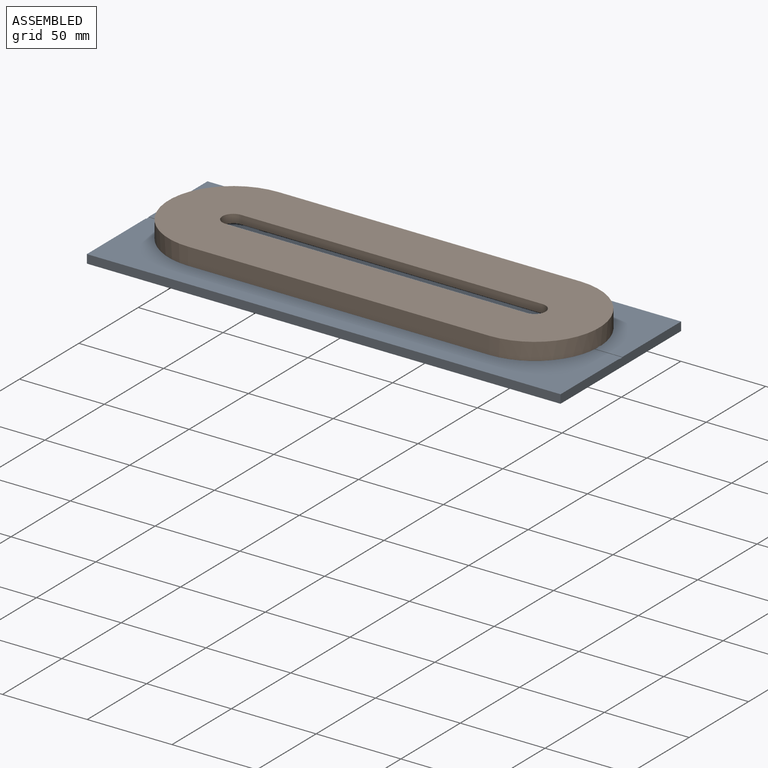
[diagram: assembled view]
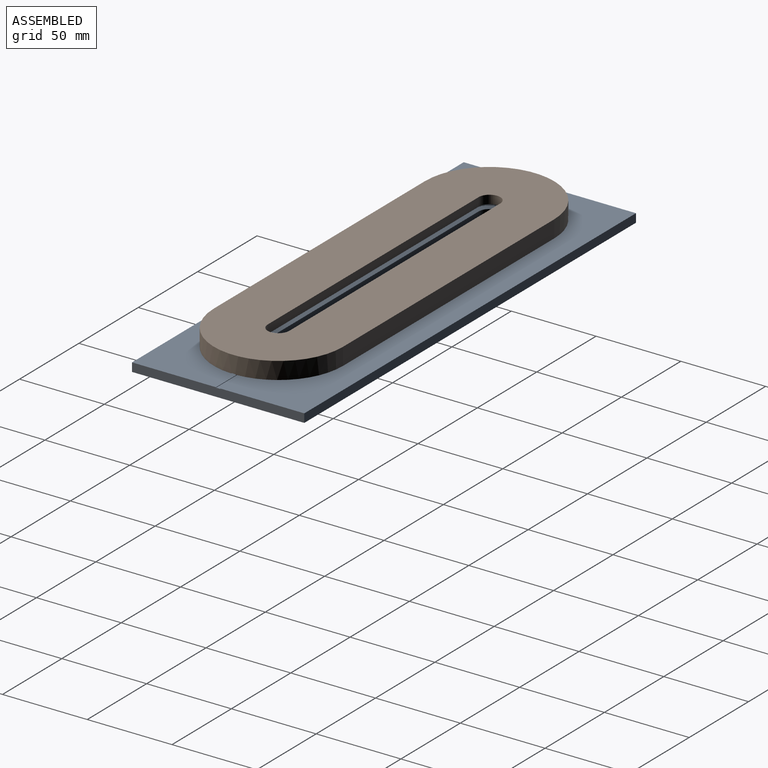
[diagram: assembled view, second angle]
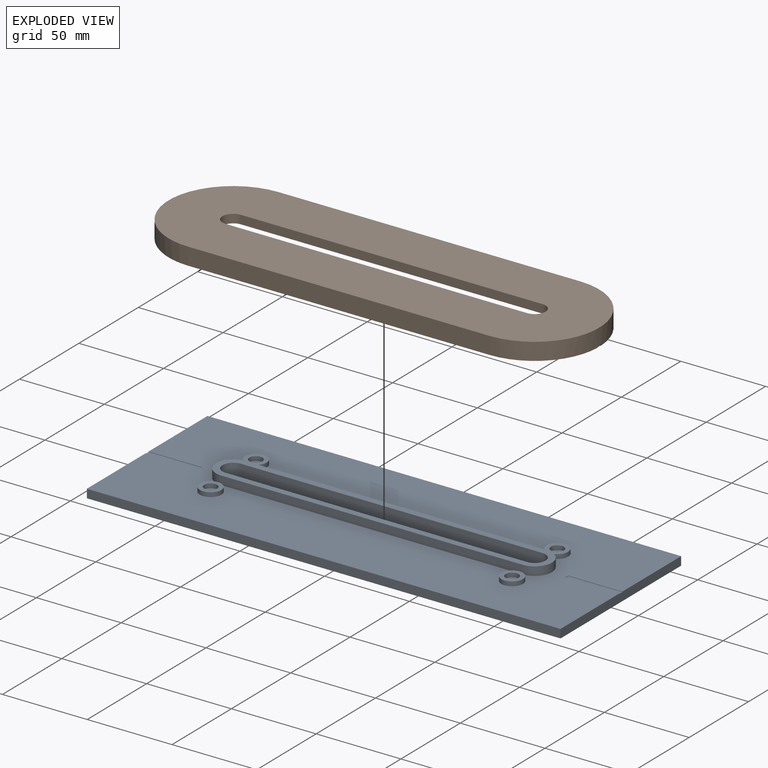
[diagram: exploded view]
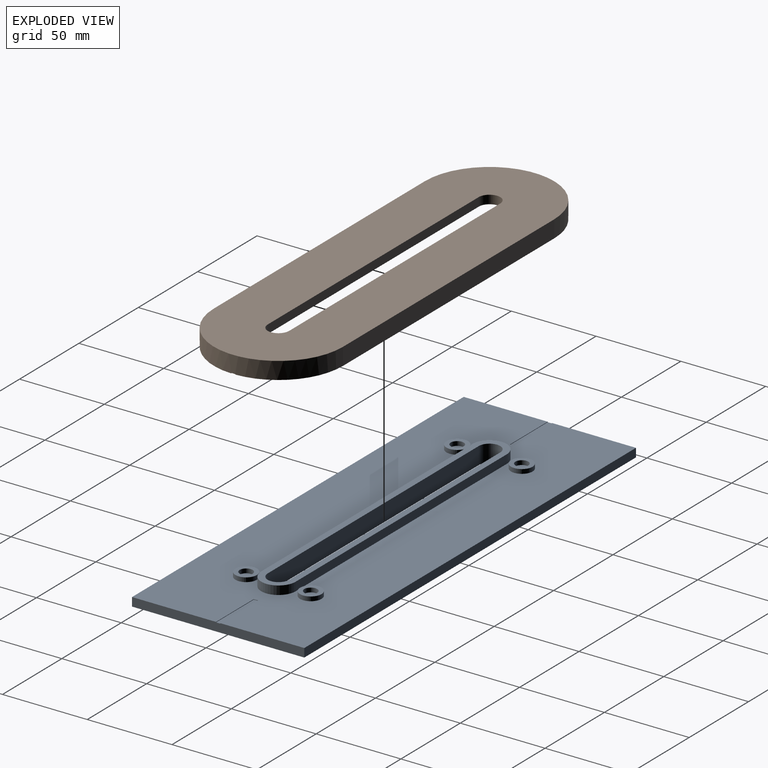
[diagram: exploded view, second angle]
ASSEMBLY  parts=2 mates=4
PART A: 39 faces, bbox 279.4x101.6x10.2 mm
  f0: plane 279.4x101.6mm, normal (0,0,1), area 23781.9mm2, adj f1,f3,f4,f5,f10,f11,f12,f13
  f1: plane 101.6x5.08mm, normal (1,0,0), area 515.5mm2, adj f0,f2,f3,f5,f31,f33,f34
  f2: plane 279.4x101.6mm, normal (0,0,-1), area 26002.3mm2, adj f1,f3,f4,f5,f6,f7,f8,f9
  f3: plane 279.4x5.08mm, normal (0,1,0), area 1419.4mm2, adj f0,f1,f2,f4
  f4: plane 101.6x5.08mm, normal (-1,0,0), area 515.5mm2, adj f0,f2,f3,f5,f36,f37,f38
  f5: plane 279.4x5.08mm, normal (0,-1,0), area 1419.4mm2, adj f0,f1,f2,f4
  f6: plane 177.8x10.16mm, normal (0,-1,0), area 1806.4mm2, adj f2,f7,f9,f14
  f7: cylinder r=6.35mm len=12.7mm, axis (0,0,1), area 202.7mm2, adj f2,f6,f8,f14
  f8: plane 177.8x10.16mm, normal (0,1,0), area 1806.4mm2, adj f2,f7,f9,f14
  f9: cylinder r=6.35mm len=12.7mm, axis (0,0,1), area 202.7mm2, adj f2,f6,f8,f14
  f10: plane 177.8x5.08mm, normal (0,-1,0), area 903.2mm2, adj f0,f11,f13,f14
  f11: cylinder r=10.16mm len=20.32mm, axis (0,0,-1), area 162.1mm2, adj f0,f10,f12,f14
  f12: plane 177.8x5.08mm, normal (0,1,0), area 903.2mm2, adj f0,f11,f13,f14
  f13: cylinder r=10.16mm len=20.32mm, axis (0,0,-1), area 162.1mm2, adj f0,f10,f12,f14
  f14: plane 198.12x20.32mm, normal (0,0,1), area 1552.5mm2, adj f6,f7,f8,f9,f10,f11,f12,f13
  f15: cylinder r=3.81mm len=7.62mm, axis (0,0,-1), area 60.8mm2, adj f17,f18
  f16: cylinder r=6.35mm len=12.7mm, axis (0,0,-1), area 101.3mm2, adj f0,f17
  f17: plane 12.7x12.7mm, normal (0,0,1), area 81.1mm2, adj f15,f16
  f18: plane 7.62x7.62mm, normal (0,0,1), area 45.6mm2, adj f15
  f19: cylinder r=6.35mm len=12.7mm, axis (0,0,-1), area 101.3mm2, adj f0,f21
  f20: cylinder r=3.81mm len=7.62mm, axis (0,0,-1), area 60.8mm2, adj f21,f22
  f21: plane 12.7x12.7mm, normal (0,0,1), area 81.1mm2, adj f19,f20
  f22: plane 7.62x7.62mm, normal (0,0,1), area 45.6mm2, adj f20
  f23: cylinder r=6.35mm len=12.7mm, axis (0,0,-1), area 101.3mm2, adj f0,f25
  f24: cylinder r=3.81mm len=7.62mm, axis (0,0,-1), area 60.8mm2, adj f25,f26
  f25: plane 12.7x12.7mm, normal (0,0,1), area 81.1mm2, adj f23,f24
  f26: plane 7.62x7.62mm, normal (0,0,1), area 45.6mm2, adj f24
  f27: cylinder r=3.81mm len=7.62mm, axis (0,0,-1), area 60.8mm2, adj f29,f30
  f28: cylinder r=6.35mm len=12.7mm, axis (0,0,-1), area 101.3mm2, adj f0,f29
  f29: plane 12.7x12.7mm, normal (0,0,1), area 81.1mm2, adj f27,f28
  f30: plane 7.62x7.62mm, normal (0,0,1), area 45.6mm2, adj f27
  f31: plane 31.75x0.25mm, normal (0,-1,0), area 8.1mm2, adj f0,f1,f32,f34
  f32: plane 2.54x0.25mm, normal (1,0,0), area 0.6mm2, adj f0,f31,f33,f34
  f33: plane 31.75x0.25mm, normal (0,1,0), area 8.1mm2, adj f0,f1,f32,f34
  f34: plane 31.75x2.54mm, normal (0,0,1), area 80.6mm2, adj f1,f31,f32,f33
  f35: plane 2.54x0.25mm, normal (-1,0,0), area 0.6mm2, adj f0,f36,f37,f38
  f36: plane 31.75x0.25mm, normal (0,-1,0), area 8.1mm2, adj f0,f4,f35,f38
  f37: plane 31.75x0.25mm, normal (0,1,0), area 8.1mm2, adj f0,f4,f35,f38
  f38: plane 31.75x2.54mm, normal (0,0,1), area 80.6mm2, adj f4,f35,f36,f37
PART B: 38 faces, bbox 254x76.2x10.2 mm
  f0: cylinder r=38.1mm len=76.2mm, axis (0,0,-1), area 1215.5mm2, adj f4,f5,f7,f8,f13,f35,f36,f37
  f1: cylinder r=38.1mm len=76.2mm, axis (0,0,-1), area 1215.5mm2, adj f4,f5,f7,f8,f13,f32,f33,f34
  f2: cylinder r=33.02mm len=66.04mm, axis (0,0,1), area 526.3mm2, adj f4,f5,f6,f14,f15,f35,f36,f37
  f3: cylinder r=33.02mm len=66.04mm, axis (0,0,1), area 526.3mm2, adj f4,f5,f6,f14,f15,f32,f33,f34
  f4: plane 253.96x36.83mm, normal (0,0,-1), area 1457.8mm2, adj f0,f1,f2,f3,f8,f15,f34,f36
  f5: plane 253.96x36.83mm, normal (0,0,-1), area 1457.8mm2, adj f0,f1,f2,f3,f7,f14,f33,f37
  f6: plane 243.84x66.04mm, normal (0,0,-1), area 12612.1mm2, adj f2,f3,f9,f10,f11,f12,f14,f15
  f7: plane 177.8x10.16mm, normal (0,1,0), area 1806.4mm2, adj f0,f1,f5,f13
  f8: plane 177.8x10.16mm, normal (0,-1,0), area 1806.4mm2, adj f0,f1,f4,f13
  f9: cylinder r=6.35mm len=12.7mm, axis (0,0,-1), area 101.3mm2, adj f6,f10,f12,f13
  f10: plane 177.8x5.08mm, normal (0,-1,0), area 903.2mm2, adj f6,f9,f11,f13
  f11: cylinder r=6.35mm len=12.7mm, axis (0,0,-1), area 101.3mm2, adj f6,f10,f12,f13
  f12: plane 177.8x5.08mm, normal (0,1,0), area 903.2mm2, adj f6,f9,f11,f13
  f13: plane 254x76.2mm, normal (0,0,1), area 15724mm2, adj f0,f1,f7,f8,f9,f10,f11,f12
  f14: plane 177.8x5.08mm, normal (0,-1,0), area 903.2mm2, adj f2,f3,f5,f6
  f15: plane 177.8x5.08mm, normal (0,1,0), area 903.2mm2, adj f2,f3,f4,f6
  f16: cylinder r=2.54mm len=5.08mm, axis (0,0,1), area 81.1mm2, adj f18,f19
  f17: cylinder r=3.68mm len=7.37mm, axis (0,0,1), area 117.6mm2, adj f6,f18
  f18: plane 7.37x7.37mm, normal (0,0,-1), area 22.3mm2, adj f16,f17
  f19: plane 5.08x5.08mm, normal (0,0,-1), area 20.3mm2, adj f16
  f20: cylinder r=3.68mm len=7.37mm, axis (0,0,1), area 117.6mm2, adj f6,f22
  f21: cylinder r=2.54mm len=5.08mm, axis (0,0,1), area 81.1mm2, adj f22,f23
  f22: plane 7.37x7.37mm, normal (0,0,-1), area 22.3mm2, adj f20,f21
  f23: plane 5.08x5.08mm, normal (0,0,-1), area 20.3mm2, adj f21
  f24: cylinder r=3.68mm len=7.37mm, axis (0,0,1), area 117.6mm2, adj f6,f26
  f25: cylinder r=2.54mm len=5.08mm, axis (0,0,1), area 81.1mm2, adj f26,f27
  f26: plane 7.37x7.37mm, normal (0,0,-1), area 22.3mm2, adj f24,f25
  f27: plane 5.08x5.08mm, normal (0,0,-1), area 20.3mm2, adj f25
  f28: cylinder r=2.54mm len=5.08mm, axis (0,0,1), area 81.1mm2, adj f30,f31
  f29: cylinder r=3.68mm len=7.37mm, axis (0,0,1), area 117.6mm2, adj f6,f30
  f30: plane 7.37x7.37mm, normal (0,0,-1), area 22.3mm2, adj f28,f29
  f31: plane 5.08x5.08mm, normal (0,0,-1), area 20.3mm2, adj f28
  f32: plane 5.1x2.54mm, normal (0,0,-1), area 12.9mm2, adj f1,f3,f33,f34
  f33: plane 5.08x0.25mm, normal (0,-1,0), area 1.3mm2, adj f1,f3,f5,f32
  f34: plane 5.08x0.25mm, normal (0,1,0), area 1.3mm2, adj f1,f3,f4,f32
  f35: plane 5.1x2.54mm, normal (0,0,-1), area 12.9mm2, adj f0,f2,f36,f37
  f36: plane 5.08x0.25mm, normal (0,1,0), area 1.3mm2, adj f0,f2,f4,f35
  f37: plane 5.08x0.25mm, normal (0,-1,0), area 1.3mm2, adj f0,f2,f5,f35
PLACE A t=(0,0,-6.35)mm fixed
PLACE B t=(0,0,-6.35)mm
MATE slider A.f15 <-> B.f20  axis (0,0,1) through (-88.9,-19.05,1.27)mm
MATE parallel A.f0 <-> B.f4  axis (0,0,1) through (0,0,-1.27)mm
MATE cylindrical A.f19 <-> B.f16  axis (0,0,1) through (-88.9,19.05,1.27)mm
MATE cylindrical A.f23 <-> B.f28  axis (0,0,-1) through (88.9,-19.05,0)mm
